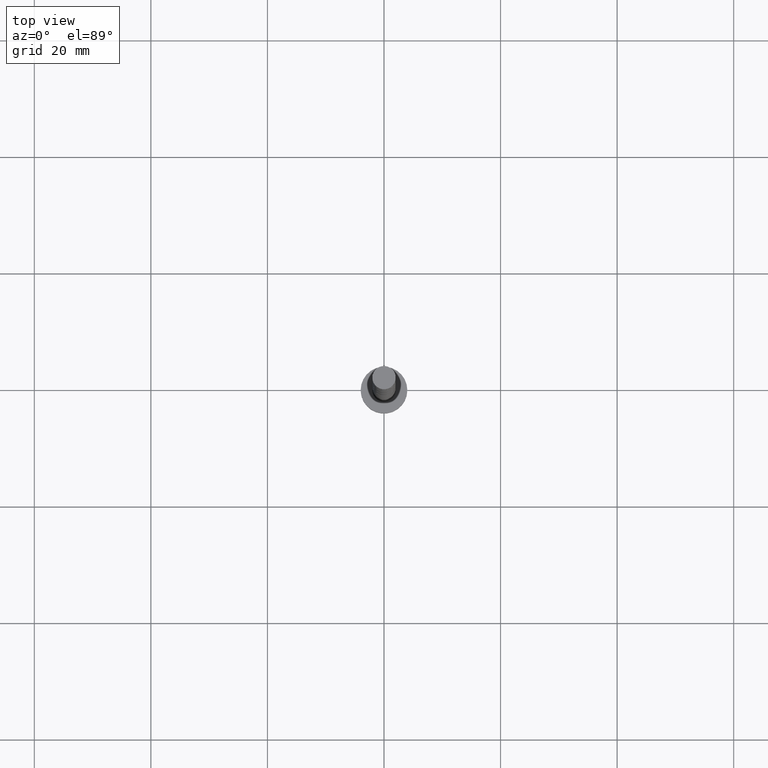
[diagram: clean part render]
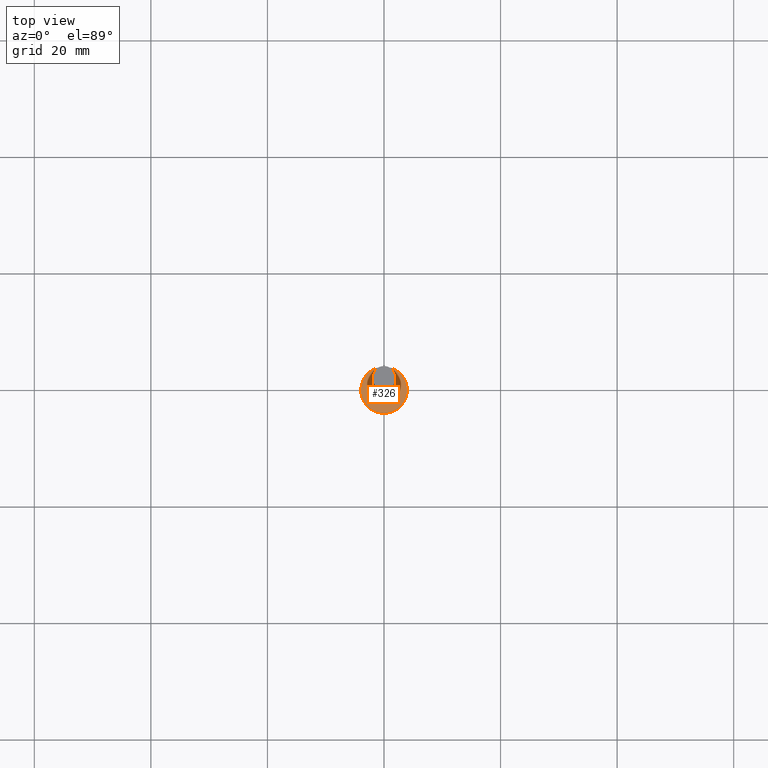
[diagram: same view with one face highlighted and labeled with its STEP entity id]
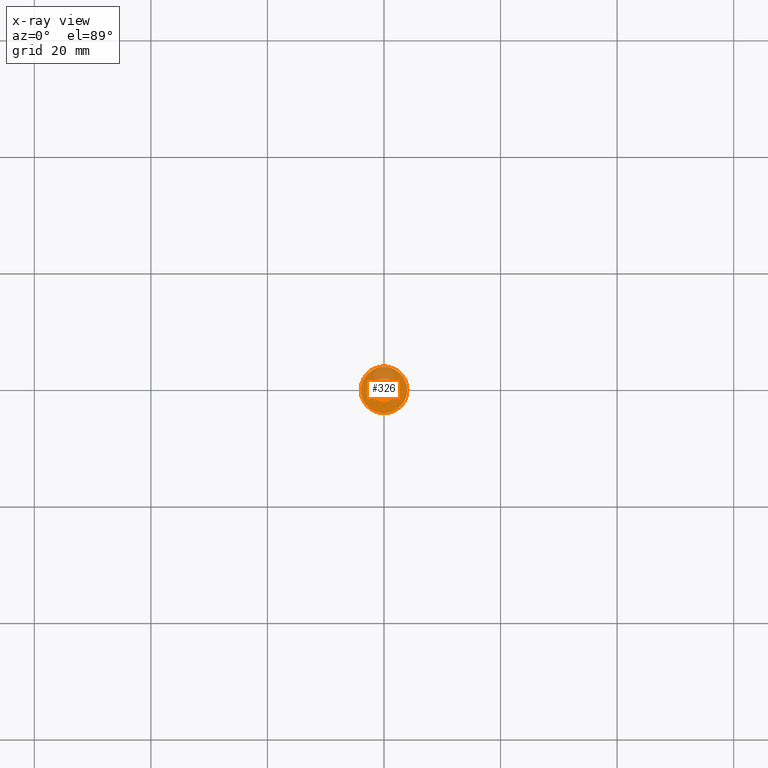
[diagram: x-ray of the same camera — body ghosted, the highlighted face saturated]
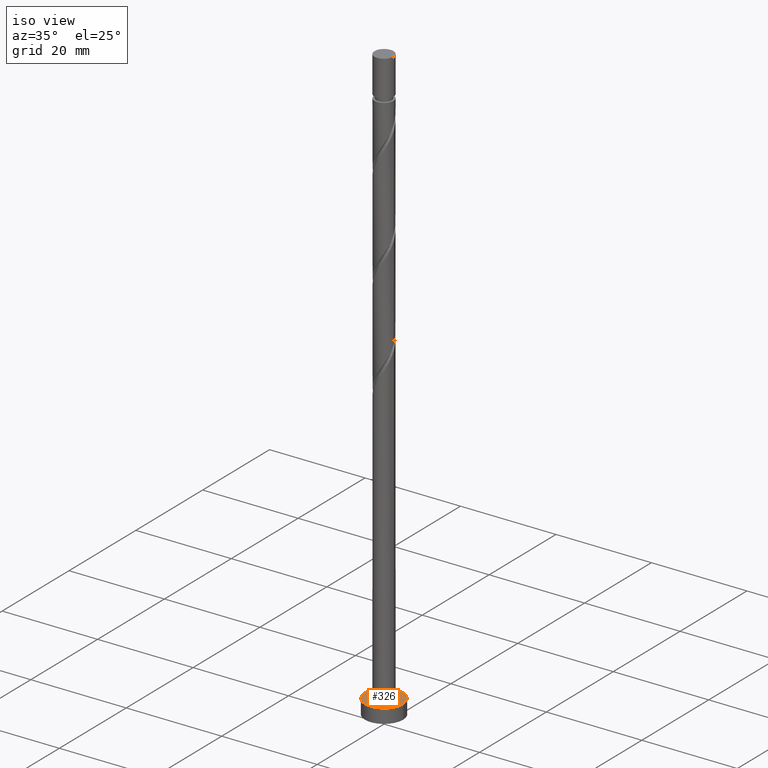
[diagram: same view with one face highlighted and labeled with its STEP entity id]
A machine part, top view. The second image highlights one B-rep face of the part: STEP entity #326.
The next image is the same camera in x-ray: the body ghosted, the highlighted face saturated — about 22% of this face is hidden behind the body in this view.
A second angle (iso view) of the same face is appended — the face is thin or edge-on in the first view.
In plain terms, the highlighted planar face has unit normal (0, 0, 1).
Its self-contained STEP definition (entity closure, byte-faithful):
#46 = ORIENTED_EDGE ( 'NONE', *, *, #659, .F. ) ;
#86 = CIRCLE ( 'NONE', #978, 4.000000000000000000 ) ;
#178 = EDGE_CURVE ( 'NONE', #897, #402, #279, .T. ) ;
#228 = CARTESIAN_POINT ( 'NONE',  ( 4.000000000000000000, 4.898587196589412829E-16, 3.000000000000000000 ) ) ;
#269 = DIRECTION ( 'NONE',  ( 0.000000000000000000, 0.000000000000000000, 1.000000000000000000 ) ) ;
#279 = CIRCLE ( 'NONE', #1246, 4.000000000000000000 ) ;
#310 = DIRECTION ( 'NONE',  ( 1.000000000000000000, 0.000000000000000000, 0.000000000000000000 ) ) ;
#326 = ADVANCED_FACE ( 'NONE', ( #1096, #878 ), #413, .T. ) ;
#338 = DIRECTION ( 'NONE',  ( 0.000000000000000000, 0.000000000000000000, 1.000000000000000000 ) ) ;
#388 = VERTEX_POINT ( 'NONE', #1493 ) ;
#397 = ORIENTED_EDGE ( 'NONE', *, *, #676, .T. ) ;
#402 = VERTEX_POINT ( 'NONE', #513 ) ;
#413 = PLANE ( 'NONE',  #993 ) ;
#438 = DIRECTION ( 'NONE',  ( 0.000000000000000000, 0.000000000000000000, 1.000000000000000000 ) ) ;
#451 = AXIS2_PLACEMENT_3D ( 'NONE', #1001, #729, #1245 ) ;
#500 = CIRCLE ( 'NONE', #451, 2.000000000000000000 ) ;
#513 = CARTESIAN_POINT ( 'NONE',  ( -4.000000000000000000, 0.000000000000000000, 3.000000000000000000 ) ) ;
#521 = EDGE_LOOP ( 'NONE', ( #1158, #46 ) ) ;
#611 = CARTESIAN_POINT ( 'NONE',  ( 0.000000000000000000, 0.000000000000000000, 3.000000000000000000 ) ) ;
#632 = CARTESIAN_POINT ( 'NONE',  ( 0.000000000000000000, 0.000000000000000000, 3.000000000000000000 ) ) ;
#659 = EDGE_CURVE ( 'NONE', #1570, #388, #879, .T. ) ;
#676 = EDGE_CURVE ( 'NONE', #402, #897, #86, .T. ) ;
#723 = ORIENTED_EDGE ( 'NONE', *, *, #178, .T. ) ;
#729 = DIRECTION ( 'NONE',  ( 0.000000000000000000, 0.000000000000000000, 1.000000000000000000 ) ) ;
#863 = DIRECTION ( 'NONE',  ( 1.000000000000000000, 0.000000000000000000, -0.000000000000000000 ) ) ;
#878 = FACE_OUTER_BOUND ( 'NONE', #1232, .T. ) ;
#879 = CIRCLE ( 'NONE', #1482, 2.000000000000000000 ) ;
#897 = VERTEX_POINT ( 'NONE', #228 ) ;
#918 = CARTESIAN_POINT ( 'NONE',  ( 0.000000000000000000, 0.000000000000000000, 3.000000000000000000 ) ) ;
#958 = DIRECTION ( 'NONE',  ( 1.000000000000000000, 0.000000000000000000, 0.000000000000000000 ) ) ;
#978 = AXIS2_PLACEMENT_3D ( 'NONE', #918, #1029, #310 ) ;
#979 = CARTESIAN_POINT ( 'NONE',  ( 2.000000000000000000, 2.449293598294705921E-16, 3.000000000000000000 ) ) ;
#993 = AXIS2_PLACEMENT_3D ( 'NONE', #632, #269, #863 ) ;
#1001 = CARTESIAN_POINT ( 'NONE',  ( 0.000000000000000000, 0.000000000000000000, 3.000000000000000000 ) ) ;
#1027 = EDGE_CURVE ( 'NONE', #388, #1570, #500, .T. ) ;
#1029 = DIRECTION ( 'NONE',  ( 0.000000000000000000, 0.000000000000000000, 1.000000000000000000 ) ) ;
#1096 = FACE_BOUND ( 'NONE', #521, .T. ) ;
#1136 = CARTESIAN_POINT ( 'NONE',  ( 0.000000000000000000, 0.000000000000000000, 3.000000000000000000 ) ) ;
#1158 = ORIENTED_EDGE ( 'NONE', *, *, #1027, .F. ) ;
#1232 = EDGE_LOOP ( 'NONE', ( #397, #723 ) ) ;
#1245 = DIRECTION ( 'NONE',  ( 1.000000000000000000, 0.000000000000000000, 0.000000000000000000 ) ) ;
#1246 = AXIS2_PLACEMENT_3D ( 'NONE', #611, #338, #958 ) ;
#1482 = AXIS2_PLACEMENT_3D ( 'NONE', #1136, #438, #1516 ) ;
#1493 = CARTESIAN_POINT ( 'NONE',  ( -2.000000000000000000, 0.000000000000000000, 3.000000000000000000 ) ) ;
#1516 = DIRECTION ( 'NONE',  ( 1.000000000000000000, 0.000000000000000000, 0.000000000000000000 ) ) ;
#1570 = VERTEX_POINT ( 'NONE', #979 ) ;